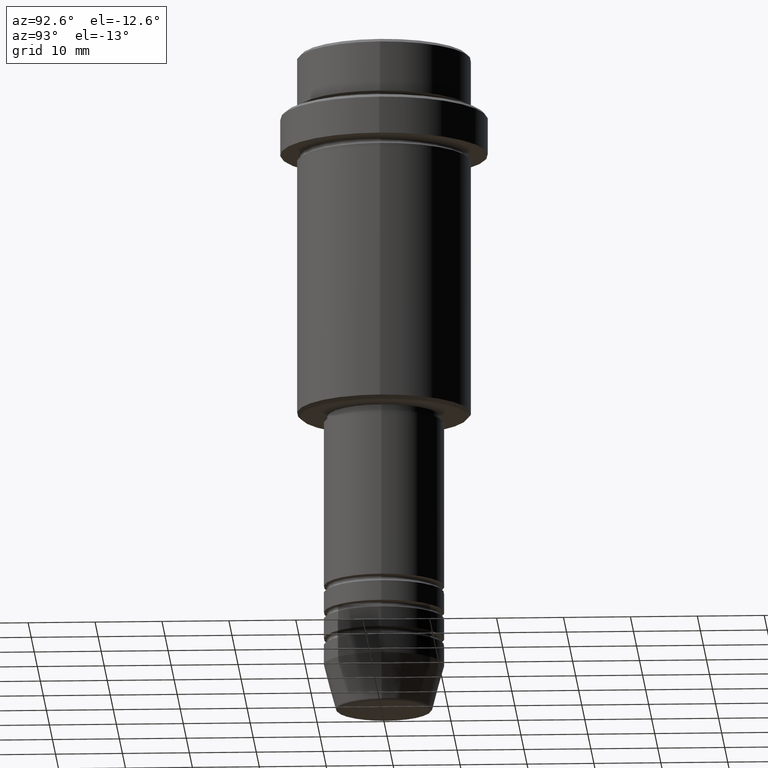
[diagram: clean part render]
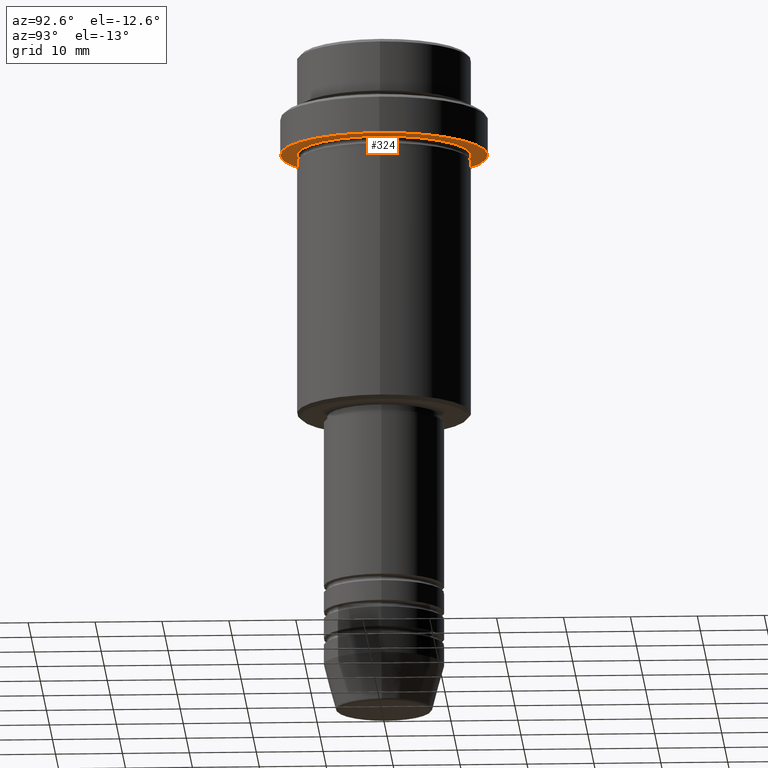
[diagram: same view with one face highlighted and labeled with its STEP entity id]
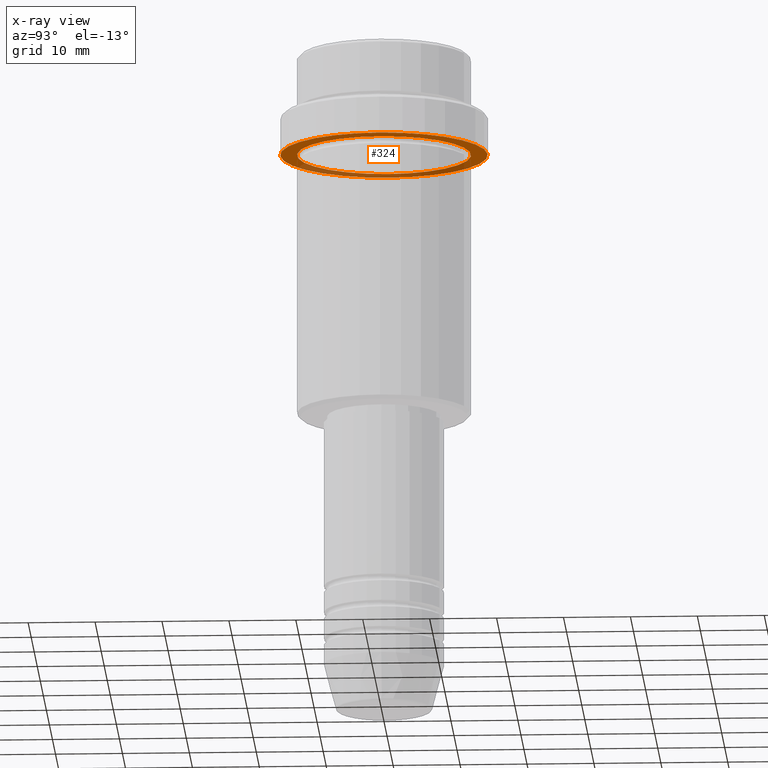
[diagram: x-ray of the same camera — body ghosted, the highlighted face saturated]
A machine part, auxiliary view. The second image highlights one B-rep face of the part: STEP entity #324.
The next image is the same camera in x-ray: the body ghosted, the highlighted face saturated — about 34% of this face is hidden behind the body in this view.
In plain terms, the highlighted planar face has unit normal (0, 0, -1).
Its self-contained STEP definition (entity closure, byte-faithful):
#10 = AXIS2_PLACEMENT_3D ( 'NONE', #1179, #639, #1148 ) ;
#85 = AXIS2_PLACEMENT_3D ( 'NONE', #1197, #1098, #778 ) ;
#106 = DIRECTION ( 'NONE',  ( -0.000000000000000000, -0.000000000000000000, 1.000000000000000000 ) ) ;
#207 = DIRECTION ( 'NONE',  ( -0.000000000000000000, -0.000000000000000000, 1.000000000000000000 ) ) ;
#324 = ADVANCED_FACE ( 'NONE', ( #950, #397 ), #825, .T. ) ;
#370 = DIRECTION ( 'NONE',  ( -0.000000000000000000, -0.000000000000000000, 1.000000000000000000 ) ) ;
#396 = CARTESIAN_POINT ( 'NONE',  ( 0.000000000000000000, 0.000000000000000000, -15.00000000000000000 ) ) ;
#397 = FACE_OUTER_BOUND ( 'NONE', #442, .T. ) ;
#418 = CARTESIAN_POINT ( 'NONE',  ( 12.99999999999999645, 1.592040838891558701E-15, -15.00000000000000000 ) ) ;
#422 = EDGE_LOOP ( 'NONE', ( #1166, #498 ) ) ;
#442 = EDGE_LOOP ( 'NONE', ( #729, #637 ) ) ;
#497 = CIRCLE ( 'NONE', #85, 12.99999999999999645 ) ;
#498 = ORIENTED_EDGE ( 'NONE', *, *, #897, .T. ) ;
#513 = DIRECTION ( 'NONE',  ( -1.000000000000000000, 0.000000000000000000, 0.000000000000000000 ) ) ;
#539 = CIRCLE ( 'NONE', #789, 12.99999999999999645 ) ;
#580 = VERTEX_POINT ( 'NONE', #879 ) ;
#619 = VERTEX_POINT ( 'NONE', #1327 ) ;
#624 = VERTEX_POINT ( 'NONE', #690 ) ;
#637 = ORIENTED_EDGE ( 'NONE', *, *, #861, .F. ) ;
#639 = DIRECTION ( 'NONE',  ( 0.000000000000000000, 0.000000000000000000, -1.000000000000000000 ) ) ;
#640 = EDGE_CURVE ( 'NONE', #580, #983, #497, .T. ) ;
#690 = CARTESIAN_POINT ( 'NONE',  ( -15.50000000000000000, 1.898202538678397557E-15, -15.00000000000000000 ) ) ;
#722 = AXIS2_PLACEMENT_3D ( 'NONE', #396, #370, #1243 ) ;
#724 = AXIS2_PLACEMENT_3D ( 'NONE', #1083, #207, #860 ) ;
#729 = ORIENTED_EDGE ( 'NONE', *, *, #800, .F. ) ;
#778 = DIRECTION ( 'NONE',  ( -1.000000000000000000, 0.000000000000000000, 0.000000000000000000 ) ) ;
#789 = AXIS2_PLACEMENT_3D ( 'NONE', #1306, #106, #513 ) ;
#800 = EDGE_CURVE ( 'NONE', #619, #624, #969, .T. ) ;
#825 = PLANE ( 'NONE',  #10 ) ;
#860 = DIRECTION ( 'NONE',  ( 1.000000000000000000, 0.000000000000000000, 0.000000000000000000 ) ) ;
#861 = EDGE_CURVE ( 'NONE', #624, #619, #1248, .T. ) ;
#879 = CARTESIAN_POINT ( 'NONE',  ( -12.99999999999999645, 0.000000000000000000, -15.00000000000000000 ) ) ;
#897 = EDGE_CURVE ( 'NONE', #983, #580, #539, .T. ) ;
#950 = FACE_BOUND ( 'NONE', #422, .T. ) ;
#969 = CIRCLE ( 'NONE', #722, 15.50000000000000000 ) ;
#983 = VERTEX_POINT ( 'NONE', #418 ) ;
#1083 = CARTESIAN_POINT ( 'NONE',  ( 0.000000000000000000, 0.000000000000000000, -15.00000000000000000 ) ) ;
#1098 = DIRECTION ( 'NONE',  ( -0.000000000000000000, -0.000000000000000000, 1.000000000000000000 ) ) ;
#1148 = DIRECTION ( 'NONE',  ( -1.000000000000000000, 0.000000000000000000, -0.000000000000000000 ) ) ;
#1166 = ORIENTED_EDGE ( 'NONE', *, *, #640, .T. ) ;
#1179 = CARTESIAN_POINT ( 'NONE',  ( 0.000000000000000000, 15.50000000000000000, -15.00000000000000000 ) ) ;
#1197 = CARTESIAN_POINT ( 'NONE',  ( 0.000000000000000000, 0.000000000000000000, -15.00000000000000000 ) ) ;
#1243 = DIRECTION ( 'NONE',  ( 1.000000000000000000, 0.000000000000000000, 0.000000000000000000 ) ) ;
#1248 = CIRCLE ( 'NONE', #724, 15.50000000000000000 ) ;
#1306 = CARTESIAN_POINT ( 'NONE',  ( 0.000000000000000000, 0.000000000000000000, -15.00000000000000000 ) ) ;
#1327 = CARTESIAN_POINT ( 'NONE',  ( 15.50000000000000000, 0.000000000000000000, -15.00000000000000000 ) ) ;